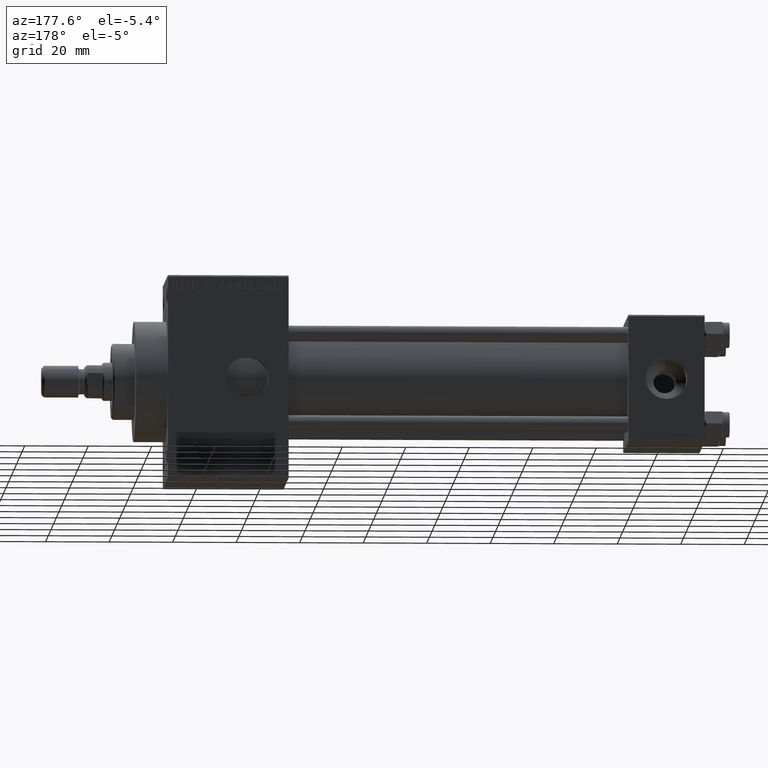
[diagram: clean part render]
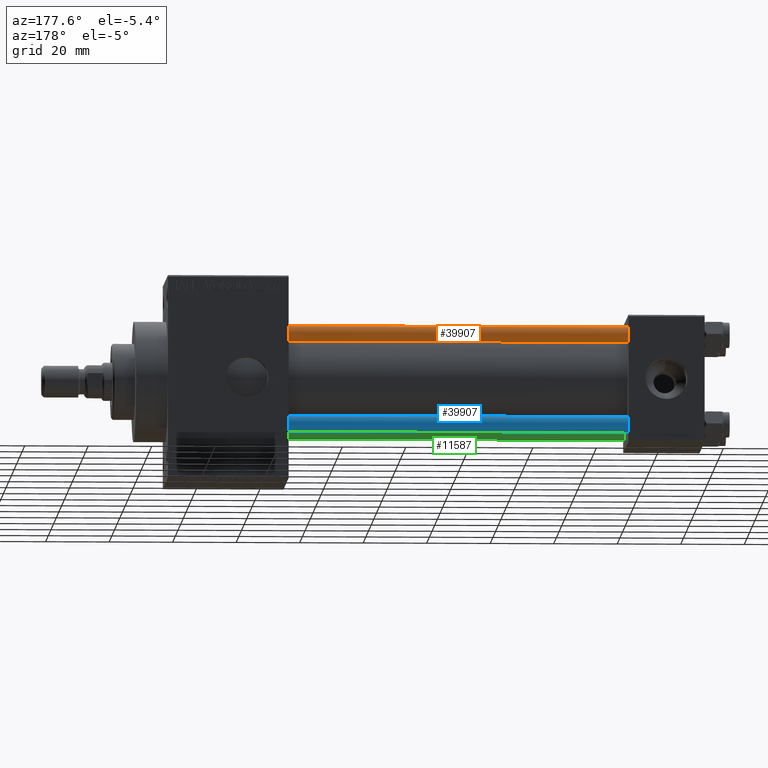
[diagram: same view with three faces highlighted in distinct colors, each labeled with its STEP entity id]
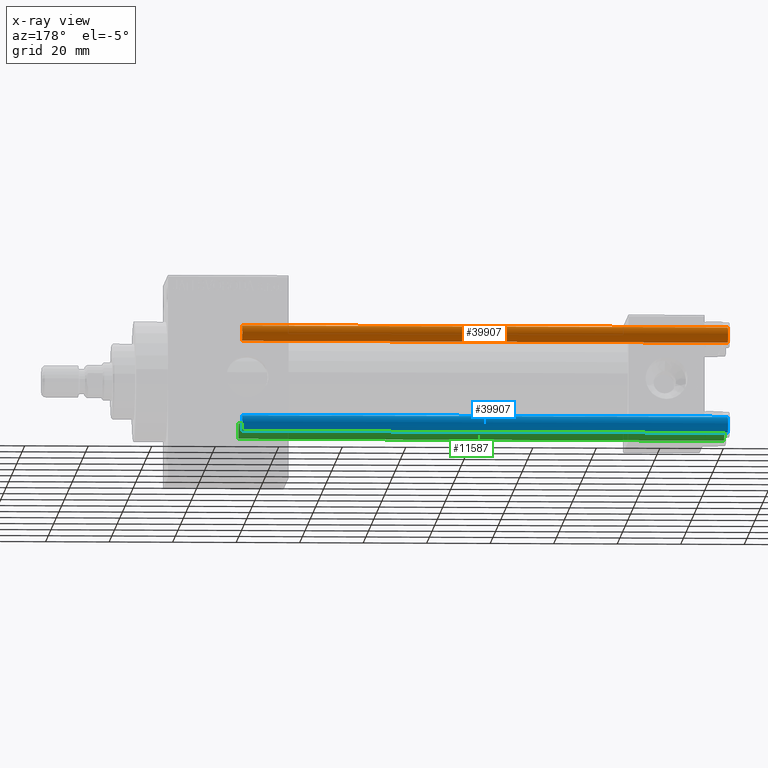
[diagram: x-ray of the same camera — body ghosted, the three highlighted faces saturated]
A machine part, auxiliary view with three faces highlighted in distinct colors.
The next image is the same camera in x-ray (body ghosted, the three faces saturated) — at least one of them is partly hidden behind the body in this view.
Their STEP definitions:

[orange] entity #39907 — the highlighted cylindrical surface (edge-blend (fillet) strip) has radius 2.5 mm, axis along (-1, -0, 0).
#1048 = EDGE_CURVE ( 'NONE', #45638, #11488, #10838, .T. ) ;
#2304 = EDGE_CURVE ( 'NONE', #11488, #12315, #46368, .T. ) ;
#4463 = DIRECTION ( 'NONE',  ( 1.000000000000000000, 0.000000000000000000, 0.000000000000000000 ) ) ;
#5915 = VECTOR ( 'NONE', #12497, 1000.000000000000000 ) ;
#7056 = DIRECTION ( 'NONE',  ( -1.000000000000000000, 0.000000000000000000, 0.000000000000000000 ) ) ;
#10183 = ORIENTED_EDGE ( 'NONE', *, *, #1048, .T. ) ;
#10436 = ORIENTED_EDGE ( 'NONE', *, *, #48866, .T. ) ;
#10838 = LINE ( 'NONE', #42665, #46333 ) ;
#11488 = VERTEX_POINT ( 'NONE', #37875 ) ;
#12315 = VERTEX_POINT ( 'NONE', #28469 ) ;
#12497 = DIRECTION ( 'NONE',  ( -0.000000000000000000, -0.000000000000000000, -1.000000000000000000 ) ) ;
#14013 = EDGE_LOOP ( 'NONE', ( #10436, #10183, #44741, #19536 ) ) ;
#14173 = CARTESIAN_POINT ( 'NONE',  ( 0.000000000000000000, 0.000000000000000000, 0.5000000000000281997 ) ) ;
#15445 = AXIS2_PLACEMENT_3D ( 'NONE', #23405, #38565, #4463 ) ;
#15782 = FACE_OUTER_BOUND ( 'NONE', #14013, .T. ) ;
#16132 = VERTEX_POINT ( 'NONE', #34671 ) ;
#19536 = ORIENTED_EDGE ( 'NONE', *, *, #24615, .F. ) ;
#20698 = CARTESIAN_POINT ( 'NONE',  ( -2.500000000000000000, 0.000000000000000000, 154.0000000000000000 ) ) ;
#23405 = CARTESIAN_POINT ( 'NONE',  ( 0.000000000000000000, 0.000000000000000000, 153.5000000000000284 ) ) ;
#24615 = EDGE_CURVE ( 'NONE', #16132, #12315, #42593, .T. ) ;
#24936 = AXIS2_PLACEMENT_3D ( 'NONE', #14173, #33329, #36306 ) ;
#25989 = CARTESIAN_POINT ( 'NONE',  ( 0.000000000000000000, 0.000000000000000000, 154.0000000000000000 ) ) ;
#28469 = CARTESIAN_POINT ( 'NONE',  ( -2.500000000000000000, 0.000000000000000000, 0.5000000000000281997 ) ) ;
#33329 = DIRECTION ( 'NONE',  ( -0.000000000000000000, -0.000000000000000000, 1.000000000000000000 ) ) ;
#34671 = CARTESIAN_POINT ( 'NONE',  ( -2.500000000000000000, 0.000000000000000000, 153.5000000000000284 ) ) ;
#36306 = DIRECTION ( 'NONE',  ( 1.000000000000000000, 0.000000000000000000, 0.000000000000000000 ) ) ;
#36885 = CIRCLE ( 'NONE', #15445, 2.500000000000000000 ) ;
#37230 = CARTESIAN_POINT ( 'NONE',  ( 2.500000000000000000, 3.061616997868383141E-16, 153.5000000000000284 ) ) ;
#37875 = CARTESIAN_POINT ( 'NONE',  ( 2.500000000000000000, 3.061616997868383141E-16, 0.5000000000000281997 ) ) ;
#38565 = DIRECTION ( 'NONE',  ( 0.000000000000000000, 0.000000000000000000, -1.000000000000000000 ) ) ;
#39907 = ADVANCED_FACE ( 'NONE', ( #15782 ), #44875, .T. ) ;
#41146 = DIRECTION ( 'NONE',  ( -0.000000000000000000, -0.000000000000000000, -1.000000000000000000 ) ) ;
#41669 = DIRECTION ( 'NONE',  ( -0.000000000000000000, -0.000000000000000000, -1.000000000000000000 ) ) ;
#42593 = LINE ( 'NONE', #20698, #5915 ) ;
#42665 = CARTESIAN_POINT ( 'NONE',  ( 2.500000000000000000, 3.061616997868383141E-16, 154.0000000000000000 ) ) ;
#44741 = ORIENTED_EDGE ( 'NONE', *, *, #2304, .T. ) ;
#44875 = CYLINDRICAL_SURFACE ( 'NONE', #47672, 2.500000000000000000 ) ;
#45638 = VERTEX_POINT ( 'NONE', #37230 ) ;
#46333 = VECTOR ( 'NONE', #41669, 1000.000000000000000 ) ;
#46368 = CIRCLE ( 'NONE', #24936, 2.500000000000000000 ) ;
#47672 = AXIS2_PLACEMENT_3D ( 'NONE', #25989, #41146, #7056 ) ;
#48866 = EDGE_CURVE ( 'NONE', #16132, #45638, #36885, .T. ) ;

[blue] entity #39907 — the highlighted cylindrical surface (edge-blend (fillet) strip) has radius 2.5 mm, axis along (1, -0, 0).
#1048 = EDGE_CURVE ( 'NONE', #45638, #11488, #10838, .T. ) ;
#2304 = EDGE_CURVE ( 'NONE', #11488, #12315, #46368, .T. ) ;
#4463 = DIRECTION ( 'NONE',  ( 1.000000000000000000, 0.000000000000000000, 0.000000000000000000 ) ) ;
#5915 = VECTOR ( 'NONE', #12497, 1000.000000000000000 ) ;
#7056 = DIRECTION ( 'NONE',  ( -1.000000000000000000, 0.000000000000000000, 0.000000000000000000 ) ) ;
#10183 = ORIENTED_EDGE ( 'NONE', *, *, #1048, .T. ) ;
#10436 = ORIENTED_EDGE ( 'NONE', *, *, #48866, .T. ) ;
#10838 = LINE ( 'NONE', #42665, #46333 ) ;
#11488 = VERTEX_POINT ( 'NONE', #37875 ) ;
#12315 = VERTEX_POINT ( 'NONE', #28469 ) ;
#12497 = DIRECTION ( 'NONE',  ( -0.000000000000000000, -0.000000000000000000, -1.000000000000000000 ) ) ;
#14013 = EDGE_LOOP ( 'NONE', ( #10436, #10183, #44741, #19536 ) ) ;
#14173 = CARTESIAN_POINT ( 'NONE',  ( 0.000000000000000000, 0.000000000000000000, 0.5000000000000281997 ) ) ;
#15445 = AXIS2_PLACEMENT_3D ( 'NONE', #23405, #38565, #4463 ) ;
#15782 = FACE_OUTER_BOUND ( 'NONE', #14013, .T. ) ;
#16132 = VERTEX_POINT ( 'NONE', #34671 ) ;
#19536 = ORIENTED_EDGE ( 'NONE', *, *, #24615, .F. ) ;
#20698 = CARTESIAN_POINT ( 'NONE',  ( -2.500000000000000000, 0.000000000000000000, 154.0000000000000000 ) ) ;
#23405 = CARTESIAN_POINT ( 'NONE',  ( 0.000000000000000000, 0.000000000000000000, 153.5000000000000284 ) ) ;
#24615 = EDGE_CURVE ( 'NONE', #16132, #12315, #42593, .T. ) ;
#24936 = AXIS2_PLACEMENT_3D ( 'NONE', #14173, #33329, #36306 ) ;
#25989 = CARTESIAN_POINT ( 'NONE',  ( 0.000000000000000000, 0.000000000000000000, 154.0000000000000000 ) ) ;
#28469 = CARTESIAN_POINT ( 'NONE',  ( -2.500000000000000000, 0.000000000000000000, 0.5000000000000281997 ) ) ;
#33329 = DIRECTION ( 'NONE',  ( -0.000000000000000000, -0.000000000000000000, 1.000000000000000000 ) ) ;
#34671 = CARTESIAN_POINT ( 'NONE',  ( -2.500000000000000000, 0.000000000000000000, 153.5000000000000284 ) ) ;
#36306 = DIRECTION ( 'NONE',  ( 1.000000000000000000, 0.000000000000000000, 0.000000000000000000 ) ) ;
#36885 = CIRCLE ( 'NONE', #15445, 2.500000000000000000 ) ;
#37230 = CARTESIAN_POINT ( 'NONE',  ( 2.500000000000000000, 3.061616997868383141E-16, 153.5000000000000284 ) ) ;
#37875 = CARTESIAN_POINT ( 'NONE',  ( 2.500000000000000000, 3.061616997868383141E-16, 0.5000000000000281997 ) ) ;
#38565 = DIRECTION ( 'NONE',  ( 0.000000000000000000, 0.000000000000000000, -1.000000000000000000 ) ) ;
#39907 = ADVANCED_FACE ( 'NONE', ( #15782 ), #44875, .T. ) ;
#41146 = DIRECTION ( 'NONE',  ( -0.000000000000000000, -0.000000000000000000, -1.000000000000000000 ) ) ;
#41669 = DIRECTION ( 'NONE',  ( -0.000000000000000000, -0.000000000000000000, -1.000000000000000000 ) ) ;
#42593 = LINE ( 'NONE', #20698, #5915 ) ;
#42665 = CARTESIAN_POINT ( 'NONE',  ( 2.500000000000000000, 3.061616997868383141E-16, 154.0000000000000000 ) ) ;
#44741 = ORIENTED_EDGE ( 'NONE', *, *, #2304, .T. ) ;
#44875 = CYLINDRICAL_SURFACE ( 'NONE', #47672, 2.500000000000000000 ) ;
#45638 = VERTEX_POINT ( 'NONE', #37230 ) ;
#46333 = VECTOR ( 'NONE', #41669, 1000.000000000000000 ) ;
#46368 = CIRCLE ( 'NONE', #24936, 2.500000000000000000 ) ;
#47672 = AXIS2_PLACEMENT_3D ( 'NONE', #25989, #41146, #7056 ) ;
#48866 = EDGE_CURVE ( 'NONE', #16132, #45638, #36885, .T. ) ;

[green] entity #11587 — the highlighted cylindrical surface (edge-blend (fillet) strip) has radius 2.5 mm, axis along (-1, 0, 0).
#1048 = EDGE_CURVE ( 'NONE', #45638, #11488, #10838, .T. ) ;
#5771 = DIRECTION ( 'NONE',  ( 1.000000000000000000, 0.000000000000000000, 0.000000000000000000 ) ) ;
#5915 = VECTOR ( 'NONE', #12497, 1000.000000000000000 ) ;
#10021 = DIRECTION ( 'NONE',  ( -0.000000000000000000, -0.000000000000000000, 1.000000000000000000 ) ) ;
#10838 = LINE ( 'NONE', #42665, #46333 ) ;
#11488 = VERTEX_POINT ( 'NONE', #37875 ) ;
#11587 = ADVANCED_FACE ( 'NONE', ( #14277 ), #18011, .T. ) ;
#11759 = AXIS2_PLACEMENT_3D ( 'NONE', #29163, #25188, #13003 ) ;
#12315 = VERTEX_POINT ( 'NONE', #28469 ) ;
#12497 = DIRECTION ( 'NONE',  ( -0.000000000000000000, -0.000000000000000000, -1.000000000000000000 ) ) ;
#13003 = DIRECTION ( 'NONE',  ( 1.000000000000000000, 0.000000000000000000, 0.000000000000000000 ) ) ;
#14277 = FACE_OUTER_BOUND ( 'NONE', #38865, .T. ) ;
#15250 = DIRECTION ( 'NONE',  ( -1.000000000000000000, 0.000000000000000000, 0.000000000000000000 ) ) ;
#16132 = VERTEX_POINT ( 'NONE', #34671 ) ;
#16213 = CIRCLE ( 'NONE', #22568, 2.500000000000000000 ) ;
#16419 = AXIS2_PLACEMENT_3D ( 'NONE', #34152, #30178, #15250 ) ;
#18011 = CYLINDRICAL_SURFACE ( 'NONE', #16419, 2.500000000000000000 ) ;
#18994 = ORIENTED_EDGE ( 'NONE', *, *, #31424, .T. ) ;
#20083 = ORIENTED_EDGE ( 'NONE', *, *, #24615, .T. ) ;
#20698 = CARTESIAN_POINT ( 'NONE',  ( -2.500000000000000000, 0.000000000000000000, 154.0000000000000000 ) ) ;
#21794 = ORIENTED_EDGE ( 'NONE', *, *, #23173, .T. ) ;
#22568 = AXIS2_PLACEMENT_3D ( 'NONE', #29432, #10021, #5771 ) ;
#23173 = EDGE_CURVE ( 'NONE', #12315, #11488, #16213, .T. ) ;
#24615 = EDGE_CURVE ( 'NONE', #16132, #12315, #42593, .T. ) ;
#25188 = DIRECTION ( 'NONE',  ( 0.000000000000000000, 0.000000000000000000, -1.000000000000000000 ) ) ;
#28469 = CARTESIAN_POINT ( 'NONE',  ( -2.500000000000000000, 0.000000000000000000, 0.5000000000000281997 ) ) ;
#29163 = CARTESIAN_POINT ( 'NONE',  ( 0.000000000000000000, 0.000000000000000000, 153.5000000000000284 ) ) ;
#29432 = CARTESIAN_POINT ( 'NONE',  ( 0.000000000000000000, 0.000000000000000000, 0.5000000000000281997 ) ) ;
#30178 = DIRECTION ( 'NONE',  ( -0.000000000000000000, -0.000000000000000000, -1.000000000000000000 ) ) ;
#31424 = EDGE_CURVE ( 'NONE', #45638, #16132, #47470, .T. ) ;
#32631 = ORIENTED_EDGE ( 'NONE', *, *, #1048, .F. ) ;
#34152 = CARTESIAN_POINT ( 'NONE',  ( 0.000000000000000000, 0.000000000000000000, 154.0000000000000000 ) ) ;
#34671 = CARTESIAN_POINT ( 'NONE',  ( -2.500000000000000000, 0.000000000000000000, 153.5000000000000284 ) ) ;
#37230 = CARTESIAN_POINT ( 'NONE',  ( 2.500000000000000000, 3.061616997868383141E-16, 153.5000000000000284 ) ) ;
#37875 = CARTESIAN_POINT ( 'NONE',  ( 2.500000000000000000, 3.061616997868383141E-16, 0.5000000000000281997 ) ) ;
#38865 = EDGE_LOOP ( 'NONE', ( #32631, #18994, #20083, #21794 ) ) ;
#41669 = DIRECTION ( 'NONE',  ( -0.000000000000000000, -0.000000000000000000, -1.000000000000000000 ) ) ;
#42593 = LINE ( 'NONE', #20698, #5915 ) ;
#42665 = CARTESIAN_POINT ( 'NONE',  ( 2.500000000000000000, 3.061616997868383141E-16, 154.0000000000000000 ) ) ;
#45638 = VERTEX_POINT ( 'NONE', #37230 ) ;
#46333 = VECTOR ( 'NONE', #41669, 1000.000000000000000 ) ;
#47470 = CIRCLE ( 'NONE', #11759, 2.500000000000000000 ) ;